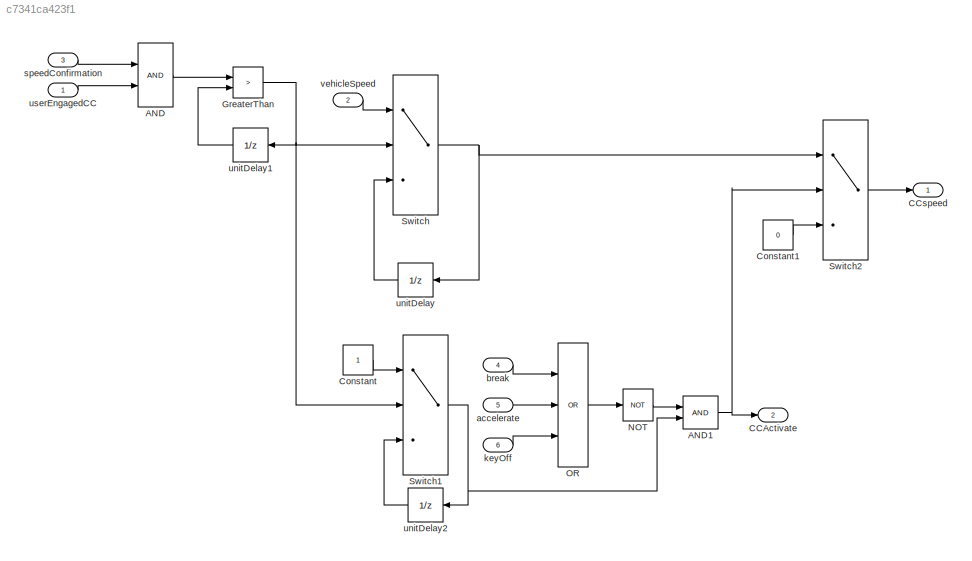
MODEL slx_c7341ca423f1
KIND model
CONFIG AbsTol = auto
CONFIG EnableMultiTasking = off
CONFIG FixedStep = auto
CONFIG MaxStep = auto
CONFIG MinStep = auto
CONFIG RelTol = 1e-3
CONFIG SampleTimeConstraint = Unconstrained
CONFIG Solver = FixedStepAuto
CONFIG SolverName = FixedStepAuto
CONFIG StartTime = 0.0
CONFIG StopTime = 100
BLOCK [Logic] AND
  AllPortsSameDT = off
  OutDataTypeStr = boolean
  Ports = [2, 1]
BLOCK [Logic] AND1
  AllPortsSameDT = off
  OutDataTypeStr = boolean
  Ports = [2, 1]
BLOCK [Outport] CCActivate
  IconDisplay = Port number
  Port = 2
BLOCK [Outport] CCspeed
  IconDisplay = Port number
BLOCK [Constant] Constant
BLOCK [Constant] Constant1
  Value = 0
BLOCK [RelationalOperator] GreaterThan
  InputSameDT = off
  Operator = >
  OutDataTypeStr = boolean
  Ports = [2, 1]
  RndMeth = Simplest
BLOCK [Logic] NOT
  AllPortsSameDT = off
  Operator = NOT
  OutDataTypeStr = boolean
  Ports = [1, 1]
BLOCK [Logic] OR
  AllPortsSameDT = off
  Inputs = 3
  Operator = OR
  OutDataTypeStr = boolean
  Ports = [3, 1]
BLOCK [Switch] Switch
  Criteria = u2 ~= 0
  InputSameDT = off
  SaturateOnIntegerOverflow = off
BLOCK [Switch] Switch1
  Criteria = u2 ~= 0
  InputSameDT = off
  SaturateOnIntegerOverflow = off
BLOCK [Switch] Switch2
  Criteria = u2 ~= 0
  InputSameDT = off
  SaturateOnIntegerOverflow = off
BLOCK [Inport] accelerate
  IconDisplay = Port number
  Port = 5
BLOCK [Inport] break
  IconDisplay = Port number
  Port = 4
BLOCK [Inport] keyOff
  IconDisplay = Port number
  Port = 6
BLOCK [Inport] speedConfirmation
  IconDisplay = Port number
  Port = 3
BLOCK [UnitDelay] unitDelay
  AttributesFormatString = InitialValue = %<InitialCondition>
  HasFrameUpgradeWarning = on
  SampleTime = -1
BLOCK [UnitDelay] unitDelay1
  AttributesFormatString = InitialValue = %<InitialCondition>
  HasFrameUpgradeWarning = on
  SampleTime = -1
BLOCK [UnitDelay] unitDelay2
  AttributesFormatString = InitialValue = %<InitialCondition>
  HasFrameUpgradeWarning = on
  SampleTime = -1
BLOCK [Inport] userEngagedCC
  IconDisplay = Port number
BLOCK [Inport] vehicleSpeed
  IconDisplay = Port number
  Port = 2
NET AND1:1 -> CCActivate:1, Switch2:2
LINE AND:1 -> GreaterThan:1
LINE Constant1:1 -> Switch2:3
LINE Constant:1 -> Switch1:1
NET GreaterThan:1 -> Switch1:2, Switch:2, unitDelay1:1
LINE NOT:1 -> AND1:1
LINE OR:1 -> NOT:1
NET Switch1:1 -> AND1:2, unitDelay2:1
LINE Switch2:1 -> CCspeed:1
NET Switch:1 -> Switch2:1, unitDelay:1
LINE accelerate:1 -> OR:2
LINE break:1 -> OR:1
LINE keyOff:1 -> OR:3
LINE speedConfirmation:1 -> AND:1
LINE unitDelay1:1 -> GreaterThan:2
LINE unitDelay2:1 -> Switch1:3
LINE unitDelay:1 -> Switch:3
LINE userEngagedCC:1 -> AND:2
LINE vehicleSpeed:1 -> Switch:1
note: NET lines group one-source signal fan-out (src -> all destinations, sorted); 1:1 wires keep LINE
